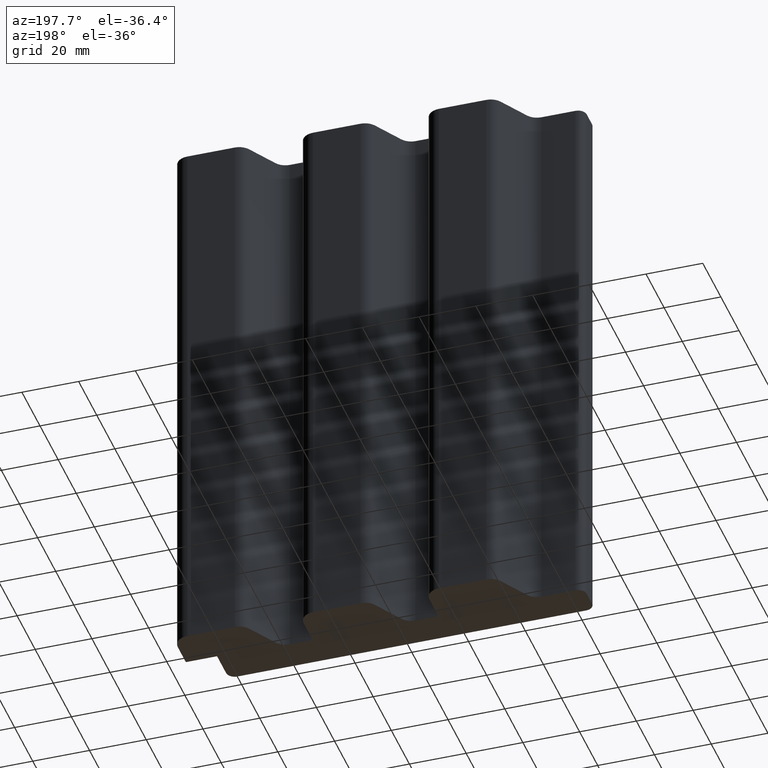
[diagram: clean part render]
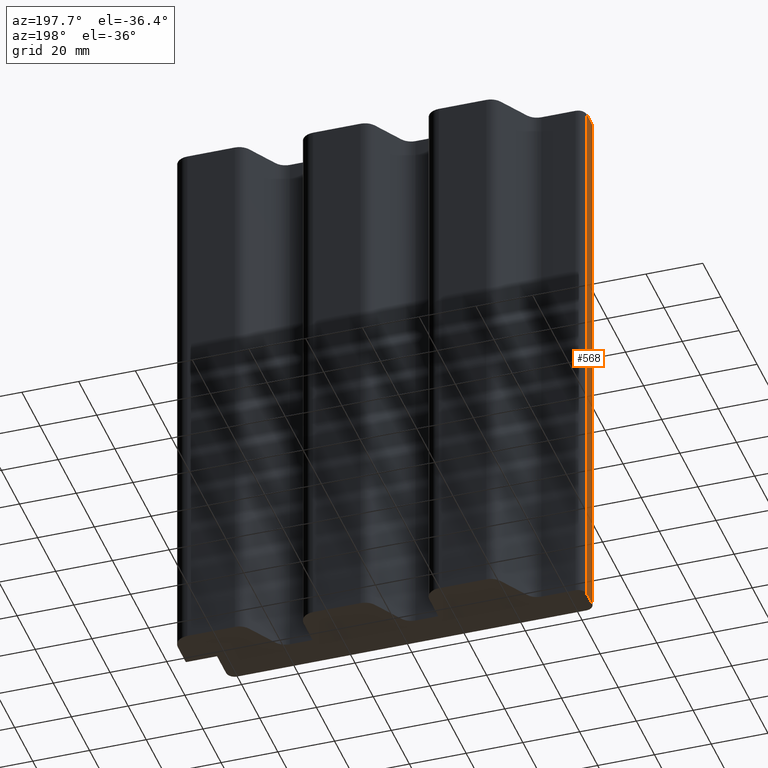
[diagram: same view with one face highlighted and labeled with its STEP entity id]
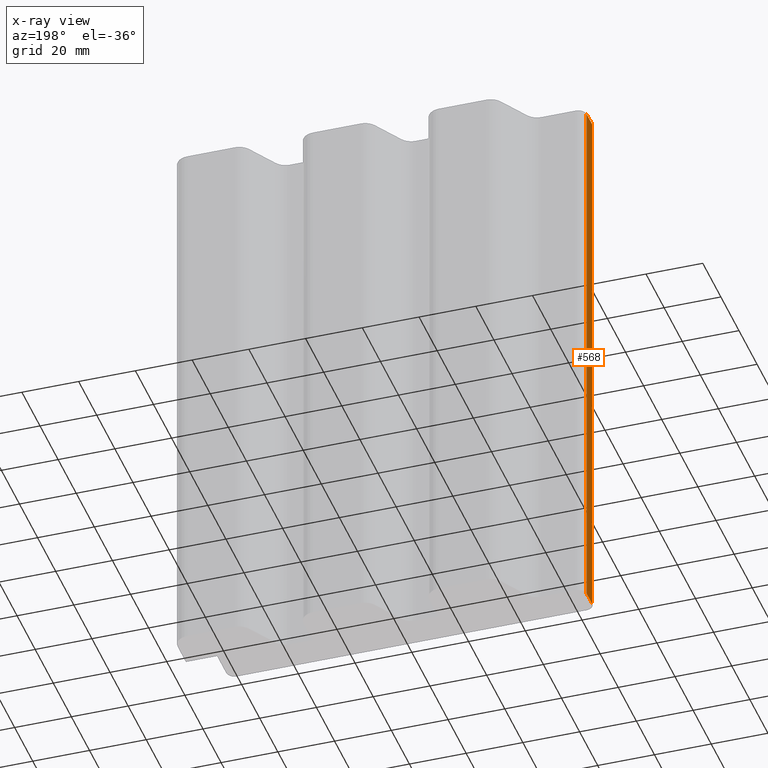
[diagram: x-ray of the same camera — body ghosted, the highlighted face saturated]
A machine part, auxiliary view. The second image highlights one B-rep face of the part: STEP entity #568.
The next image is the same camera in x-ray: the body ghosted, the highlighted face saturated — about 0% of this face is hidden behind the body in this view.
In plain terms, the highlighted planar face has unit normal (-1, -0, 0).
Its self-contained STEP definition (entity closure, byte-faithful):
#21=PLANE('',#622);
#44=FACE_OUTER_BOUND('',#74,.T.);
#74=EDGE_LOOP('',(#421,#422,#423,#424));
#116=LINE('',#894,#176);
#117=LINE('',#897,#177);
#118=LINE('',#899,#178);
#119=LINE('',#900,#179);
#176=VECTOR('',#722,10.);
#177=VECTOR('',#725,10.);
#178=VECTOR('',#726,10.);
#179=VECTOR('',#727,10.);
#259=VERTEX_POINT('',#890);
#260=VERTEX_POINT('',#892);
#261=VERTEX_POINT('',#896);
#262=VERTEX_POINT('',#898);
#326=EDGE_CURVE('',#259,#260,#116,.T.);
#327=EDGE_CURVE('',#259,#261,#117,.T.);
#328=EDGE_CURVE('',#262,#260,#118,.T.);
#329=EDGE_CURVE('',#261,#262,#119,.T.);
#421=ORIENTED_EDGE('',*,*,#327,.F.);
#422=ORIENTED_EDGE('',*,*,#326,.T.);
#423=ORIENTED_EDGE('',*,*,#328,.F.);
#424=ORIENTED_EDGE('',*,*,#329,.F.);
#568=ADVANCED_FACE('',(#44),#21,.T.);
#622=AXIS2_PLACEMENT_3D('',#895,#723,#724);
#722=DIRECTION('',(0.,0.,1.));
#723=DIRECTION('center_axis',(-1.,-4.45569507215361E-13,0.));
#724=DIRECTION('ref_axis',(4.45569507215361E-13,-1.,0.));
#725=DIRECTION('',(-4.45569507215361E-13,1.,0.));
#726=DIRECTION('',(4.45569507215361E-13,-1.,0.));
#727=DIRECTION('',(0.,0.,1.));
#890=CARTESIAN_POINT('',(-64.50000000003,2.99999999998435,0.));
#892=CARTESIAN_POINT('',(-64.50000000003,2.99999999998435,200.));
#894=CARTESIAN_POINT('',(-64.50000000003,2.99999999998435,0.));
#895=CARTESIAN_POINT('Origin',(-64.5000000000327,8.99999999999604,0.));
#896=CARTESIAN_POINT('',(-64.5000000000327,8.99999999999604,0.));
#897=CARTESIAN_POINT('',(-64.50000000003,2.99999999998435,0.));
#898=CARTESIAN_POINT('',(-64.5000000000327,8.99999999999604,200.));
#899=CARTESIAN_POINT('',(-64.50000000003,2.99999999998435,200.));
#900=CARTESIAN_POINT('',(-64.5000000000327,8.99999999999604,0.));